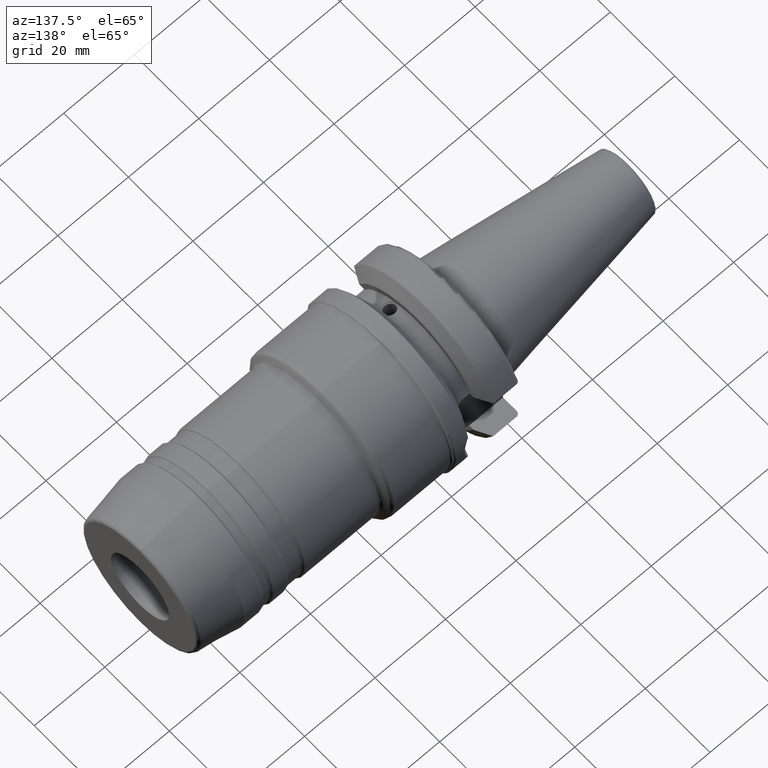
[diagram: clean part render]
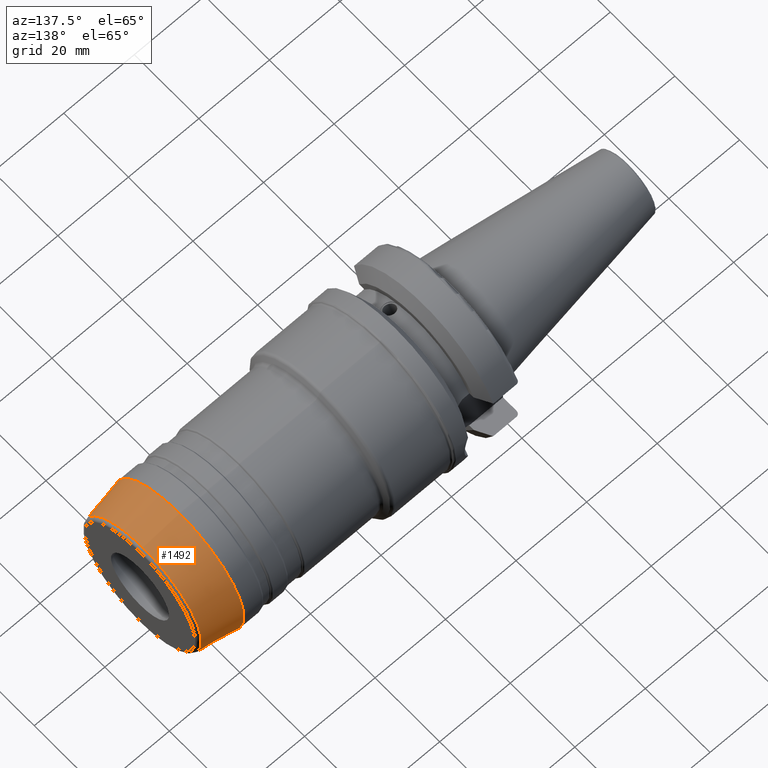
[diagram: same view with one face highlighted and labeled with its STEP entity id]
A machine part, auxiliary view. The second image highlights one B-rep face of the part: STEP entity #1492.
In plain terms, the highlighted conical surface has half-angle 10 deg.
Its self-contained STEP definition (entity closure, byte-faithful):
#106=CONICAL_SURFACE('',#1645,19.,0.174532925199432);
#128=LINE('',#2416,#201);
#201=VECTOR('',#1939,19.);
#324=FACE_OUTER_BOUND('',#417,.T.);
#417=EDGE_LOOP('',(#1074,#1075,#1076,#1077));
#534=CIRCLE('',#1644,18.1457081218349);
#535=CIRCLE('',#1646,19.9848077530122);
#628=VERTEX_POINT('',#2411);
#629=VERTEX_POINT('',#2415);
#795=EDGE_CURVE('',#628,#628,#534,.T.);
#796=EDGE_CURVE('',#628,#629,#128,.T.);
#797=EDGE_CURVE('',#629,#629,#535,.T.);
#1074=ORIENTED_EDGE('',*,*,#795,.F.);
#1075=ORIENTED_EDGE('',*,*,#796,.T.);
#1076=ORIENTED_EDGE('',*,*,#797,.F.);
#1077=ORIENTED_EDGE('',*,*,#796,.F.);
#1492=ADVANCED_FACE('',(#324),#106,.T.);
#1644=AXIS2_PLACEMENT_3D('',#2413,#1935,#1936);
#1645=AXIS2_PLACEMENT_3D('',#2414,#1937,#1938);
#1646=AXIS2_PLACEMENT_3D('',#2417,#1940,#1941);
#1935=DIRECTION('center_axis',(1.,0.,0.));
#1936=DIRECTION('ref_axis',(0.,0.,1.));
#1937=DIRECTION('center_axis',(-1.,0.,0.));
#1938=DIRECTION('ref_axis',(0.,0.,-1.));
#1939=DIRECTION('',(-0.984807753012208,-2.12657684957576E-17,0.17364817766693));
#1940=DIRECTION('center_axis',(-1.,0.,0.));
#1941=DIRECTION('ref_axis',(0.,0.,1.));
#2411=CARTESIAN_POINT('',(89.1736481776669,-2.22220833696673E-15,18.1457081218349));
#2413=CARTESIAN_POINT('Origin',(89.1736481776669,-2.22220833696673E-15,
0.));
#2414=CARTESIAN_POINT('Origin',(84.3287181803823,0.,0.));
#2415=CARTESIAN_POINT('',(78.7435958749055,-2.44743308463016E-15,19.9848077530122));
#2416=CARTESIAN_POINT('',(84.3287181803823,-2.32682891837997E-15,19.));
#2417=CARTESIAN_POINT('Origin',(78.7435958749055,-2.44743308463016E-15,
0.));